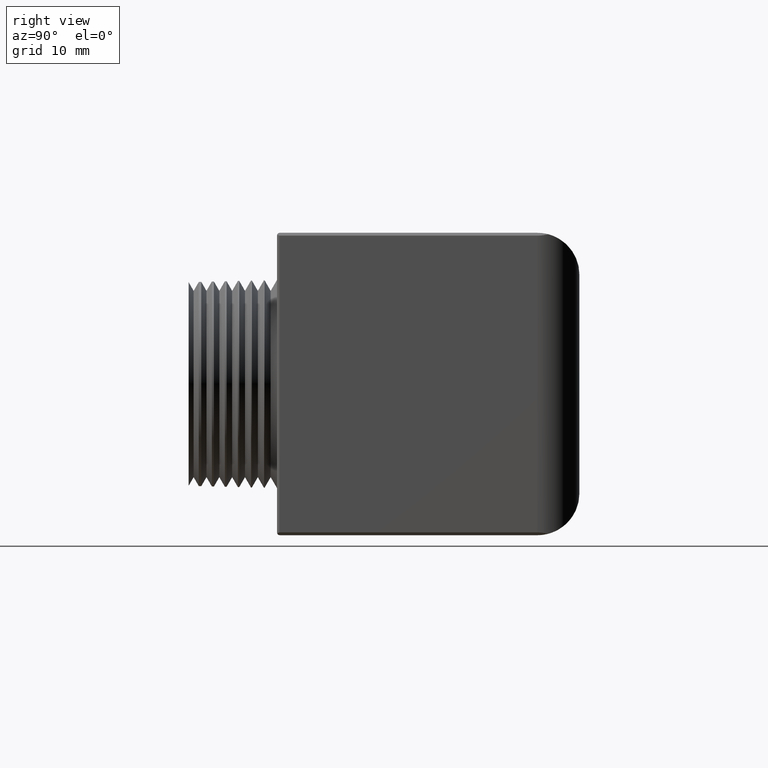
[diagram: clean part render]
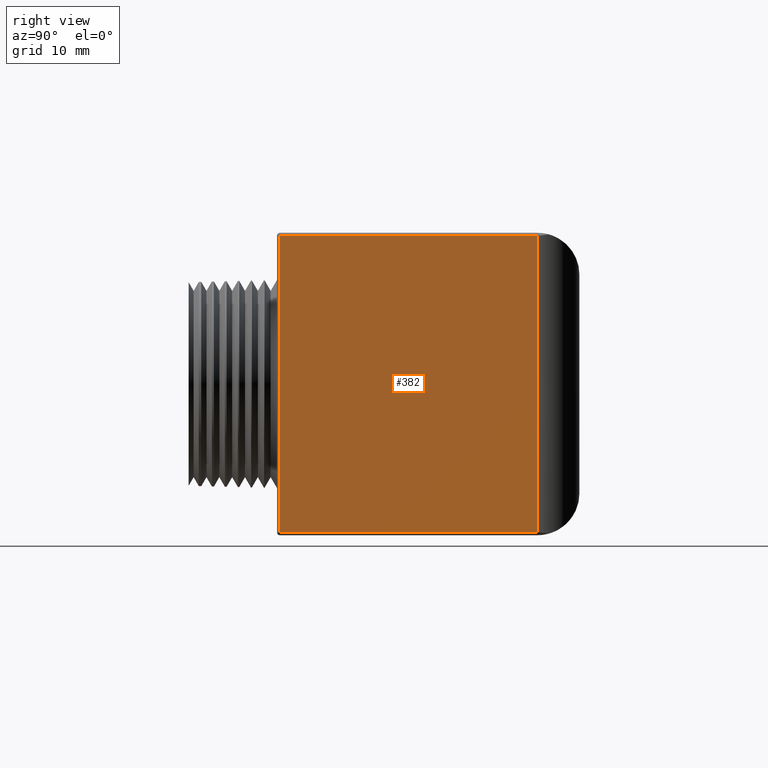
[diagram: same view with one face highlighted and labeled with its STEP entity id]
A machine part, right view. The second image highlights one B-rep face of the part: STEP entity #382.
In plain terms, the highlighted planar face has unit normal (1, 0, 0).
Its self-contained STEP definition (entity closure, byte-faithful):
#335 = EDGE_CURVE ( 'NONE', #336, #337, #1923, .T. ) ;
#336 = VERTEX_POINT ( 'NONE', #1916 ) ;
#337 = VERTEX_POINT ( 'NONE', #1915 ) ;
#360 = ORIENTED_EDGE ( 'NONE', *, *, #361, .T. ) ;
#361 = EDGE_CURVE ( 'NONE', #387, #336, #1954, .T. ) ;
#362 = ORIENTED_EDGE ( 'NONE', *, *, #335, .T. ) ;
#363 = ORIENTED_EDGE ( 'NONE', *, *, #364, .T. ) ;
#364 = EDGE_CURVE ( 'NONE', #337, #386, #1950, .T. ) ;
#382 = ADVANCED_FACE ( 'NONE', ( #2017 ), #2016, .T. ) ;
#383 = EDGE_LOOP ( 'NONE', ( #384, #360, #362, #363 ) ) ;
#384 = ORIENTED_EDGE ( 'NONE', *, *, #385, .T. ) ;
#385 = EDGE_CURVE ( 'NONE', #386, #387, #2011, .T. ) ;
#386 = VERTEX_POINT ( 'NONE', #2007 ) ;
#387 = VERTEX_POINT ( 'NONE', #2006 ) ;
#1915 = CARTESIAN_POINT ( 'NONE',  ( 0.9430000000000000600, -0.5200000000000000200, -0.5200000000000002400 ) ) ;
#1916 = CARTESIAN_POINT ( 'NONE',  ( 0.9430000000000000600, -0.5200000000000000200, 0.5199999999999999100 ) ) ;
#1917 = DIRECTION ( 'NONE',  ( 0.0000000000000000000, 0.0000000000000000000, -1.000000000000000000 ) ) ;
#1918 = VECTOR ( 'NONE', #1917, 39.37007874015748100 ) ;
#1919 = CARTESIAN_POINT ( 'NONE',  ( 0.9430000000000000600, -0.5200000000000000200, -2.171145456685665400 ) ) ;
#1923 = LINE ( 'NONE', #1919, #1918 ) ;
#1947 = DIRECTION ( 'NONE',  ( -1.288607544181256200E-016, 1.000000000000000000, 0.0000000000000000000 ) ) ;
#1948 = VECTOR ( 'NONE', #1947, 39.37007874015748100 ) ;
#1949 = CARTESIAN_POINT ( 'NONE',  ( 0.9429999999999998400, 0.5299999999999999200, -0.5200000000000002400 ) ) ;
#1950 = LINE ( 'NONE', #1949, #1948 ) ;
#1951 = DIRECTION ( 'NONE',  ( 1.288607544181256200E-016, -1.000000000000000000, 0.0000000000000000000 ) ) ;
#1952 = VECTOR ( 'NONE', #1951, 39.37007874015748100 ) ;
#1953 = CARTESIAN_POINT ( 'NONE',  ( 0.9430000000000000600, -0.5200000000000000200, 0.5199999999999999100 ) ) ;
#1954 = LINE ( 'NONE', #1953, #1952 ) ;
#2006 = CARTESIAN_POINT ( 'NONE',  ( 0.9429999999999998400, 0.3825000000000000100, 0.5199999999999999100 ) ) ;
#2007 = CARTESIAN_POINT ( 'NONE',  ( 0.9429999999999998400, 0.3825000000000000100, -0.5200000000000002400 ) ) ;
#2008 = DIRECTION ( 'NONE',  ( 0.0000000000000000000, 0.0000000000000000000, 1.000000000000000000 ) ) ;
#2009 = VECTOR ( 'NONE', #2008, 39.37007874015748100 ) ;
#2010 = CARTESIAN_POINT ( 'NONE',  ( 0.9429999999999998400, 0.3825000000000000100, 0.5300000000000000300 ) ) ;
#2011 = LINE ( 'NONE', #2010, #2009 ) ;
#2012 = DIRECTION ( 'NONE',  ( -1.288607544181256200E-016, 1.000000000000000000, 0.0000000000000000000 ) ) ;
#2013 = DIRECTION ( 'NONE',  ( 1.000000000000000000, 1.288607544181256200E-016, 0.0000000000000000000 ) ) ;
#2014 = CARTESIAN_POINT ( 'NONE',  ( 0.9429999999999998400, 0.5299999999999999200, -2.171145456685665400 ) ) ;
#2015 = AXIS2_PLACEMENT_3D ( 'NONE', #2014, #2013, #2012 ) ;
#2016 = PLANE ( 'NONE',  #2015 ) ;
#2017 = FACE_OUTER_BOUND ( 'NONE', #383, .T. ) ;